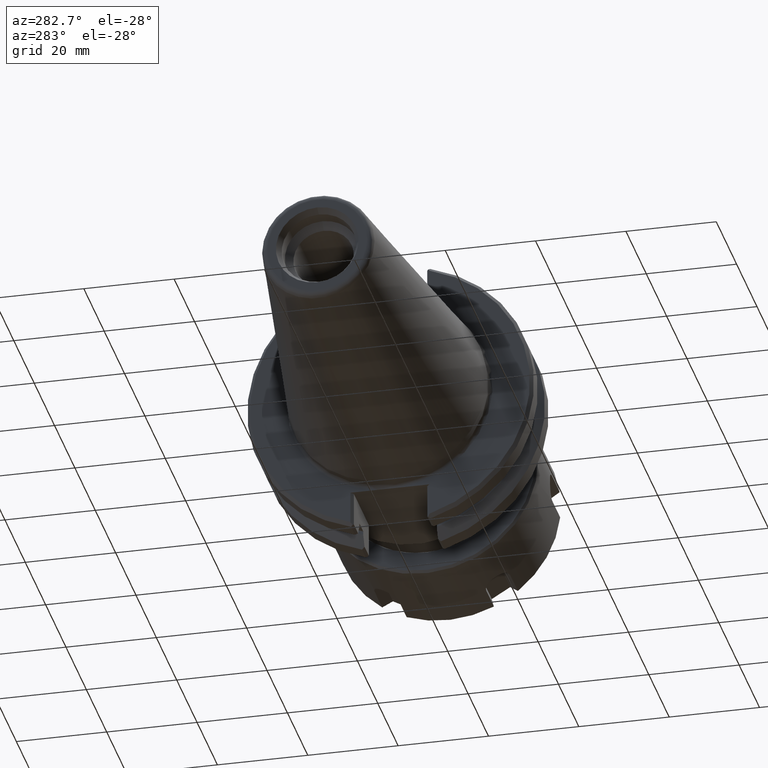
[diagram: clean part render]
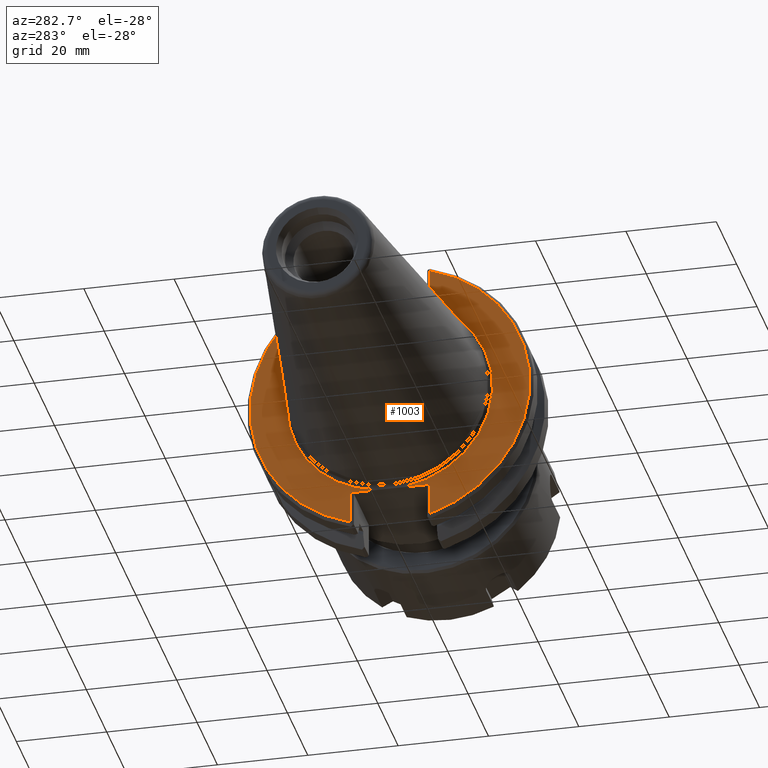
[diagram: same view with one face highlighted and labeled with its STEP entity id]
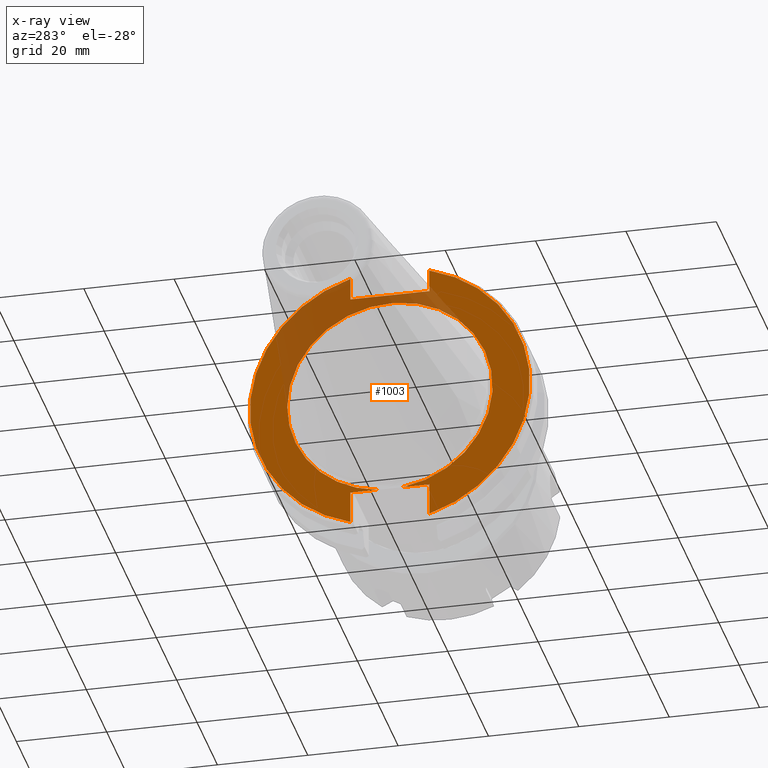
[diagram: x-ray of the same camera — body ghosted, the highlighted face saturated]
A machine part, auxiliary view. The second image highlights one B-rep face of the part: STEP entity #1003.
The next image is the same camera in x-ray: the body ghosted, the highlighted face saturated — about 21% of this face is hidden behind the body in this view.
In plain terms, the highlighted planar face has unit normal (-1, 0, 0).
Its self-contained STEP definition (entity closure, byte-faithful):
#461=CARTESIAN_POINT('',(0.125,0.344999999999579,0.972));
#462=VERTEX_POINT('',#461);
#469=CARTESIAN_POINT('',(0.125,-0.345000000000422,0.972));
#470=VERTEX_POINT('',#469);
#471=CARTESIAN_POINT('',(0.125,0.344999999999579,0.972));
#472=DIRECTION('',(0.0,-1.0,0.0));
#473=VECTOR('',#472,0.69);
#474=LINE('',#471,#473);
#475=EDGE_CURVE('',#462,#470,#474,.T.);
#893=CARTESIAN_POINT('',(0.125,-0.11171839597846,-0.888));
#894=VERTEX_POINT('',#893);
#895=CARTESIAN_POINT('',(0.125,0.11171839597846,-0.888));
#896=VERTEX_POINT('',#895);
#911=CARTESIAN_POINT('',(0.125,0.0,0.0));
#912=DIRECTION('',(-1.0,0.0,0.0));
#913=DIRECTION('',(0.0,-1.0,0.0));
#914=AXIS2_PLACEMENT_3D('',#911,#912,#913);
#915=CIRCLE('',#914,0.895);
#916=EDGE_CURVE('',#894,#896,#915,.T.);
#932=CARTESIAN_POINT('',(0.125,1.0625,0.0));
#933=DIRECTION('',(-1.0,0.0,0.0));
#934=DIRECTION('',(0.0,0.0,1.0));
#935=AXIS2_PLACEMENT_3D('',#932,#933,#934);
#936=PLANE('',#935);
#937=ORIENTED_EDGE('',*,*,#916,.F.);
#938=CARTESIAN_POINT('',(0.125,-0.345000000000358,-0.888));
#939=VERTEX_POINT('',#938);
#940=CARTESIAN_POINT('',(0.125,-0.345000000000358,-0.888));
#941=DIRECTION('',(0.0,1.0,0.0));
#942=VECTOR('',#941,0.233281604021898);
#943=LINE('',#940,#942);
#944=EDGE_CURVE('',#939,#894,#943,.T.);
#945=ORIENTED_EDGE('',*,*,#944,.F.);
#946=CARTESIAN_POINT('',(0.125,-0.345000000000358,-1.170202973846739));
#947=VERTEX_POINT('',#946);
#948=CARTESIAN_POINT('',(0.125,-0.345000000000358,-1.170202973846739));
#949=DIRECTION('',(0.0,0.0,1.0));
#950=VECTOR('',#949,0.282202973846739);
#951=LINE('',#948,#950);
#952=EDGE_CURVE('',#947,#939,#951,.T.);
#953=ORIENTED_EDGE('',*,*,#952,.F.);
#954=CARTESIAN_POINT('',(0.125,-0.345000000000422,1.170202973846721));
#955=VERTEX_POINT('',#954);
#956=CARTESIAN_POINT('',(0.125,0.0,0.0));
#957=DIRECTION('',(1.0,0.0,0.0));
#958=DIRECTION('',(0.0,-1.0,0.0));
#959=AXIS2_PLACEMENT_3D('',#956,#957,#958);
#960=CIRCLE('',#959,1.22);
#961=EDGE_CURVE('',#955,#947,#960,.T.);
#962=ORIENTED_EDGE('',*,*,#961,.F.);
#963=CARTESIAN_POINT('',(0.125,-0.345000000000422,0.972));
#964=DIRECTION('',(0.0,0.0,1.0));
#965=VECTOR('',#964,0.198202973846721);
#966=LINE('',#963,#965);
#967=EDGE_CURVE('',#470,#955,#966,.T.);
#968=ORIENTED_EDGE('',*,*,#967,.F.);
#969=ORIENTED_EDGE('',*,*,#475,.F.);
#970=CARTESIAN_POINT('',(0.125,0.344999999999579,1.170202973846969));
#971=VERTEX_POINT('',#970);
#972=CARTESIAN_POINT('',(0.125,0.344999999999579,1.170202973846969));
#973=DIRECTION('',(0.0,0.0,-1.0));
#974=VECTOR('',#973,0.198202973846969);
#975=LINE('',#972,#974);
#976=EDGE_CURVE('',#971,#462,#975,.T.);
#977=ORIENTED_EDGE('',*,*,#976,.F.);
#978=CARTESIAN_POINT('',(0.125,0.344999999999642,-1.170202973846951));
#979=VERTEX_POINT('',#978);
#980=CARTESIAN_POINT('',(0.125,0.0,0.0));
#981=DIRECTION('',(1.0,0.0,0.0));
#982=DIRECTION('',(0.0,1.0,0.0));
#983=AXIS2_PLACEMENT_3D('',#980,#981,#982);
#984=CIRCLE('',#983,1.22);
#985=EDGE_CURVE('',#979,#971,#984,.T.);
#986=ORIENTED_EDGE('',*,*,#985,.F.);
#987=CARTESIAN_POINT('',(0.125,0.344999999999642,-0.888));
#988=VERTEX_POINT('',#987);
#989=CARTESIAN_POINT('',(0.125,0.344999999999642,-0.888));
#990=DIRECTION('',(0.0,0.0,-1.0));
#991=VECTOR('',#990,0.28220297384695);
#992=LINE('',#989,#991);
#993=EDGE_CURVE('',#988,#979,#992,.T.);
#994=ORIENTED_EDGE('',*,*,#993,.F.);
#995=CARTESIAN_POINT('',(0.125,0.11171839597846,-0.888));
#996=DIRECTION('',(0.0,1.0,0.0));
#997=VECTOR('',#996,0.233281604021182);
#998=LINE('',#995,#997);
#999=EDGE_CURVE('',#896,#988,#998,.T.);
#1000=ORIENTED_EDGE('',*,*,#999,.F.);
#1001=EDGE_LOOP('',(#937,#945,#953,#962,#968,#969,#977,#986,#994,#1000));
#1002=FACE_OUTER_BOUND('',#1001,.T.);
#1003=ADVANCED_FACE('',(#1002),#936,.T.);